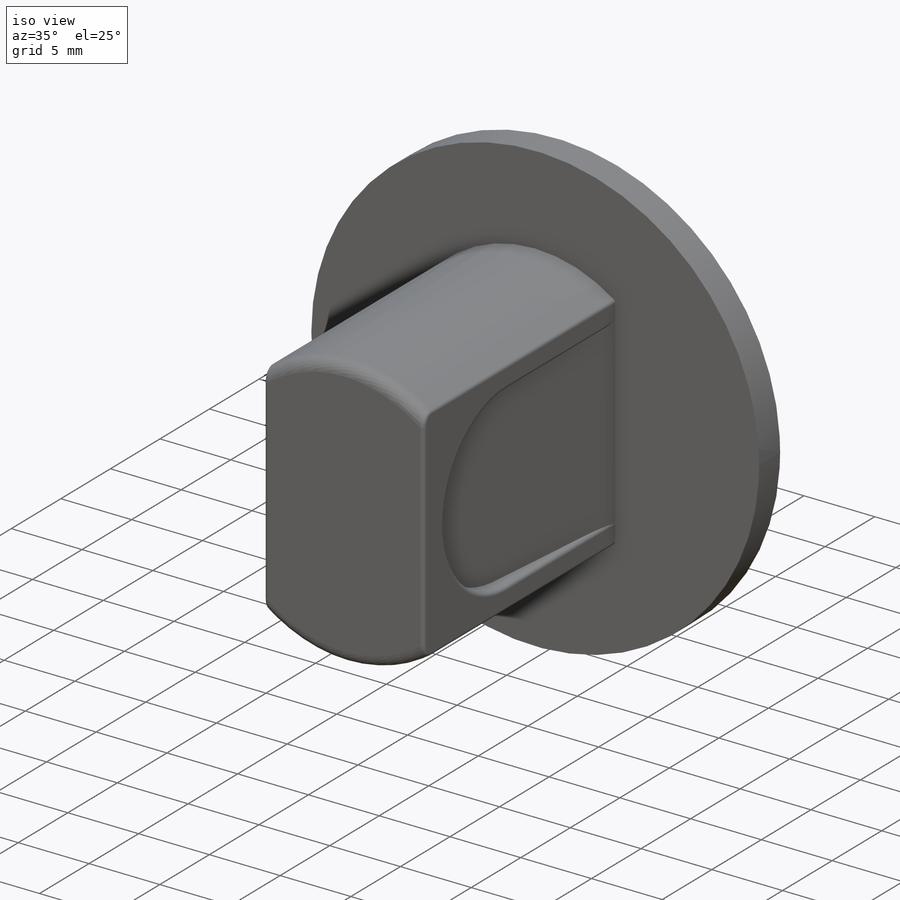
[diagram: iso view]
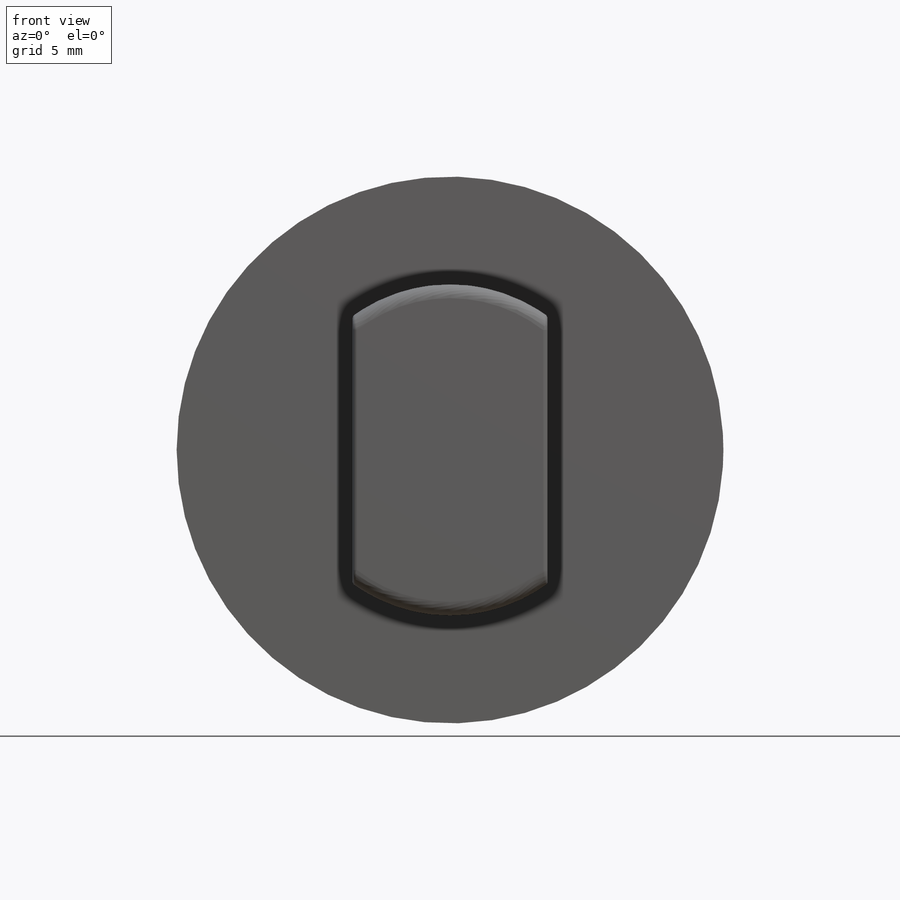
[diagram: front view]
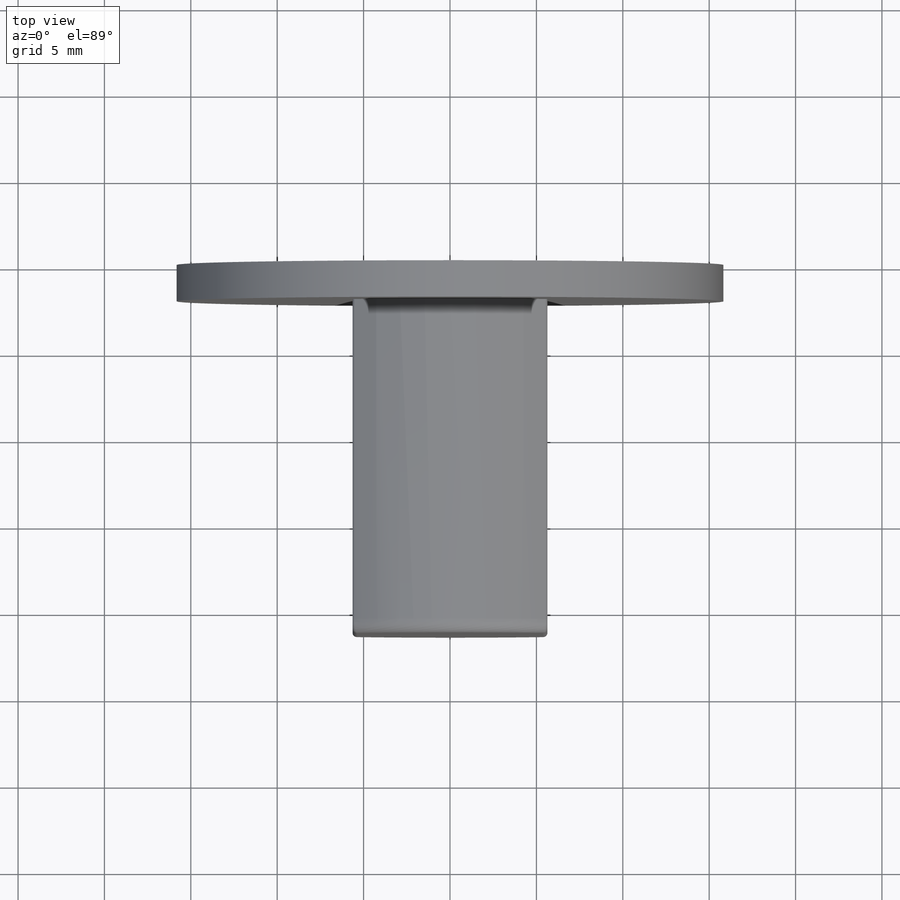
[diagram: top view]
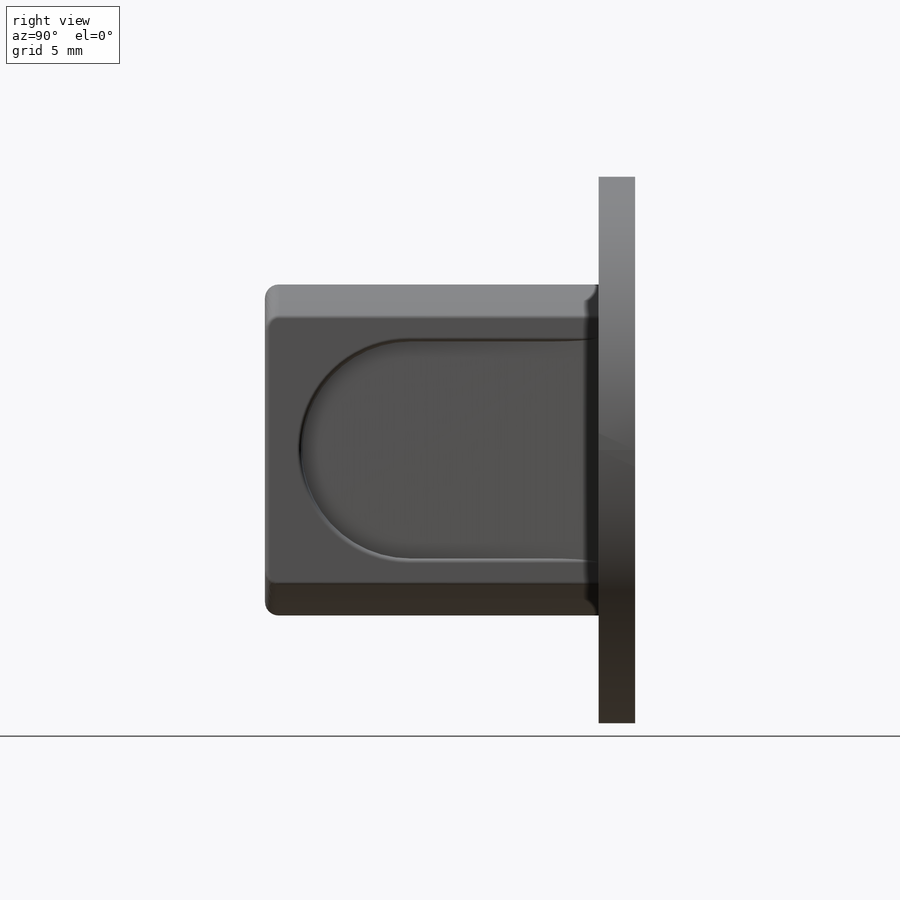
[diagram: right view]
SOLIDWORKS PART (.sldprt)
format: sldprt  version: not decoded by parser v0  size: 420,352 bytes
history: native  units: mm
features: sketch x4, extrude x2, cut_revolve x2, fillet x2, material x1 (+16 scaffold rows collapsed)
feature tree (27):
  scaffold x16  (default folders/planes/origin — collapsed)
  material  "Acrylic (Medium-high impact)"
  sketch  "Sketch1"  dims[D1=31.6484mm]
  extrude  "Extrude1"  Depth=2.1082mm
  sketch  "Sketch3"  dims[D1=19.1643mm D2=5.6388mm D3=5.6388mm]
  extrude  "Extrude2"  Depth=21.4249mm
  sketch  "Sketch9"  dims[D5=8.382mm D1=~6.28015mm D2=~6.28015mm D3=0.0mm D4=0.0mm]
  cut_revolve  "Cut-Revolve1"  Angle=5deg
  sketch  "Sketch11"  dims[c1.D3=8.382mm c1.D1=0.0mm c1.D2=0.0mm c2.D1=~6.28015mm c2.D2=~6.28015mm]
  cut_revolve  "Cut-Revolve2"  Angle=5deg
  fillet  "Fillet1"  Radius=0.79375mm
  fillet  "Fillet2"  Radius=0.254mm
decode coverage: 10 of 10 modeling features carry decoded parameters
note: ~ marks probable driven/reference dimensions
note: suppression state not decoded; provenance and decode notes live in map.json
